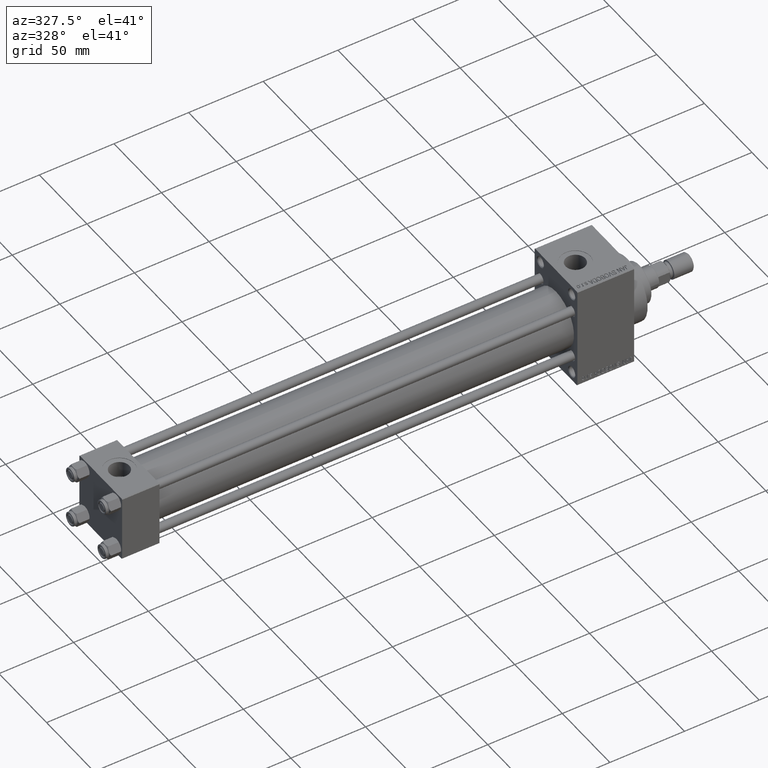
[diagram: clean part render]
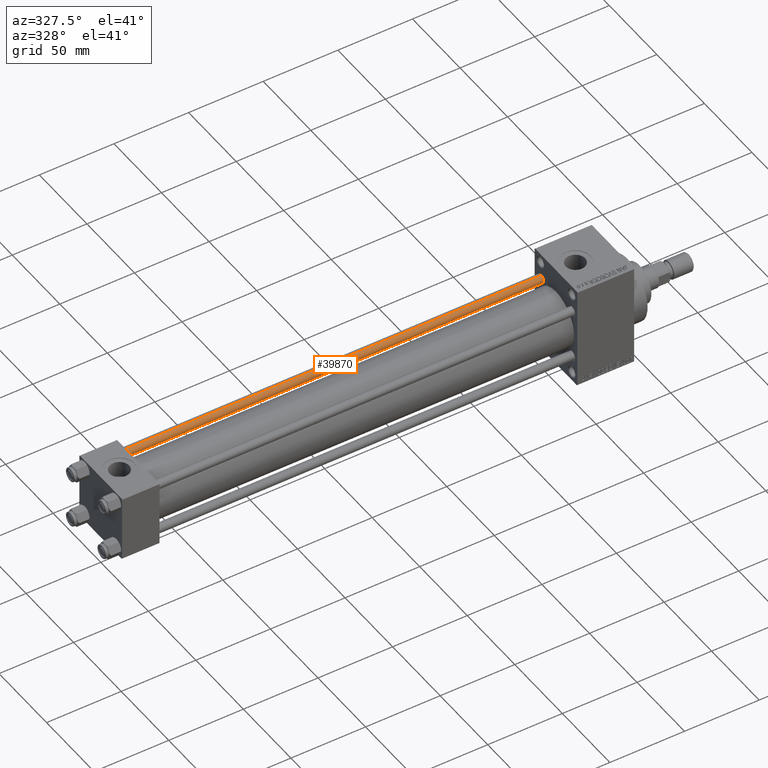
[diagram: same view with one face highlighted and labeled with its STEP entity id]
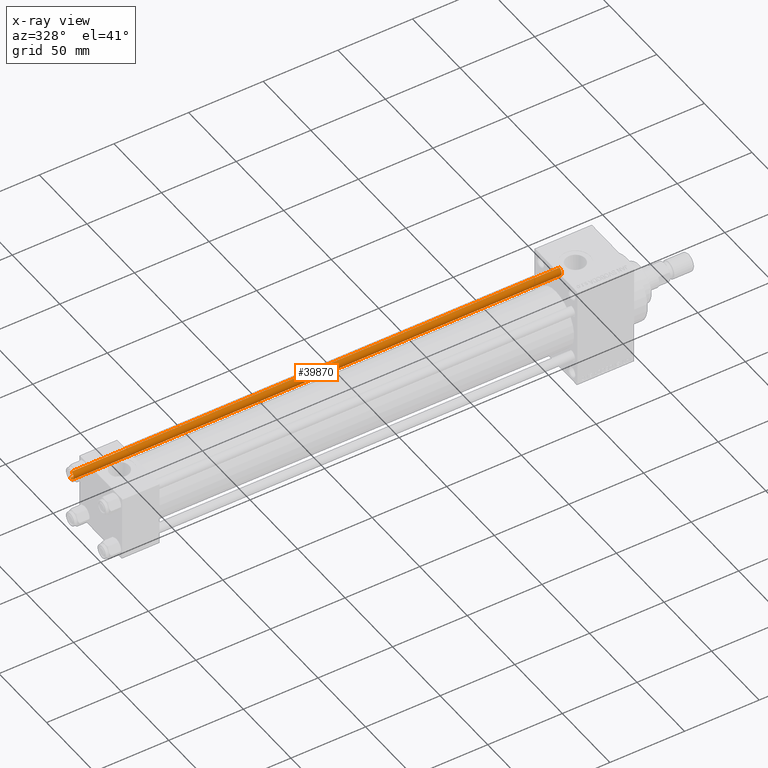
[diagram: x-ray of the same camera — body ghosted, the highlighted face saturated]
A machine part, auxiliary view. The second image highlights one B-rep face of the part: STEP entity #39870.
The next image is the same camera in x-ray: the body ghosted, the highlighted face saturated — about 0% of this face is hidden behind the body in this view.
In plain terms, the highlighted cylindrical surface (edge-blend (fillet) strip) has radius 3 mm, axis along (-1, -0, 0).
Its self-contained STEP definition (entity closure, byte-faithful):
#1236 = EDGE_CURVE ( 'NONE', #14699, #28025, #22921, .T. ) ;
#3795 = VECTOR ( 'NONE', #44519, 1000.000000000000000 ) ;
#4768 = DIRECTION ( 'NONE',  ( -0.000000000000000000, -0.000000000000000000, -1.000000000000000000 ) ) ;
#8528 = CYLINDRICAL_SURFACE ( 'NONE', #9337, 3.000000000000000444 ) ;
#9337 = AXIS2_PLACEMENT_3D ( 'NONE', #16018, #4768, #44028 ) ;
#10394 = CARTESIAN_POINT ( 'NONE',  ( 3.000000000000000444, 3.673940397442060361E-16, 327.5000000000000000 ) ) ;
#11511 = CARTESIAN_POINT ( 'NONE',  ( -3.000000000000000444, 0.000000000000000000, 327.5000000000000000 ) ) ;
#13267 = VECTOR ( 'NONE', #26916, 1000.000000000000000 ) ;
#14699 = VERTEX_POINT ( 'NONE', #10394 ) ;
#14945 = VERTEX_POINT ( 'NONE', #20749 ) ;
#16018 = CARTESIAN_POINT ( 'NONE',  ( 0.000000000000000000, 0.000000000000000000, 328.0000000000000000 ) ) ;
#18317 = CIRCLE ( 'NONE', #25538, 3.000000000000000444 ) ;
#18476 = CIRCLE ( 'NONE', #46524, 3.000000000000000444 ) ;
#18570 = ORIENTED_EDGE ( 'NONE', *, *, #1236, .F. ) ;
#18848 = CARTESIAN_POINT ( 'NONE',  ( 0.000000000000000000, 0.000000000000000000, 327.5000000000000000 ) ) ;
#20749 = CARTESIAN_POINT ( 'NONE',  ( -3.000000000000000444, 0.000000000000000000, 0.5000000000000559552 ) ) ;
#21887 = ORIENTED_EDGE ( 'NONE', *, *, #46523, .T. ) ;
#22921 = LINE ( 'NONE', #41733, #13267 ) ;
#25538 = AXIS2_PLACEMENT_3D ( 'NONE', #18848, #37908, #34143 ) ;
#26916 = DIRECTION ( 'NONE',  ( -0.000000000000000000, -0.000000000000000000, -1.000000000000000000 ) ) ;
#28025 = VERTEX_POINT ( 'NONE', #30586 ) ;
#28708 = LINE ( 'NONE', #44035, #3795 ) ;
#28935 = EDGE_CURVE ( 'NONE', #14945, #28025, #18476, .T. ) ;
#30586 = CARTESIAN_POINT ( 'NONE',  ( 3.000000000000000444, 3.673940397442060361E-16, 0.5000000000000559552 ) ) ;
#31453 = DIRECTION ( 'NONE',  ( -0.000000000000000000, -0.000000000000000000, 1.000000000000000000 ) ) ;
#31455 = ORIENTED_EDGE ( 'NONE', *, *, #41330, .T. ) ;
#31616 = ORIENTED_EDGE ( 'NONE', *, *, #28935, .T. ) ;
#34143 = DIRECTION ( 'NONE',  ( 1.000000000000000000, 0.000000000000000000, 0.000000000000000000 ) ) ;
#34433 = EDGE_LOOP ( 'NONE', ( #18570, #21887, #31455, #31616 ) ) ;
#37908 = DIRECTION ( 'NONE',  ( 0.000000000000000000, 0.000000000000000000, -1.000000000000000000 ) ) ;
#38304 = VERTEX_POINT ( 'NONE', #11511 ) ;
#39870 = ADVANCED_FACE ( 'NONE', ( #44511 ), #8528, .T. ) ;
#41330 = EDGE_CURVE ( 'NONE', #38304, #14945, #28708, .T. ) ;
#41733 = CARTESIAN_POINT ( 'NONE',  ( 3.000000000000000444, 3.673940397442060361E-16, 328.0000000000000000 ) ) ;
#41773 = CARTESIAN_POINT ( 'NONE',  ( 0.000000000000000000, 0.000000000000000000, 0.5000000000000559552 ) ) ;
#44028 = DIRECTION ( 'NONE',  ( -1.000000000000000000, 0.000000000000000000, 0.000000000000000000 ) ) ;
#44035 = CARTESIAN_POINT ( 'NONE',  ( -3.000000000000000444, 0.000000000000000000, 328.0000000000000000 ) ) ;
#44511 = FACE_OUTER_BOUND ( 'NONE', #34433, .T. ) ;
#44519 = DIRECTION ( 'NONE',  ( -0.000000000000000000, -0.000000000000000000, -1.000000000000000000 ) ) ;
#46523 = EDGE_CURVE ( 'NONE', #14699, #38304, #18317, .T. ) ;
#46524 = AXIS2_PLACEMENT_3D ( 'NONE', #41773, #31453, #46777 ) ;
#46777 = DIRECTION ( 'NONE',  ( 1.000000000000000000, 0.000000000000000000, 0.000000000000000000 ) ) ;